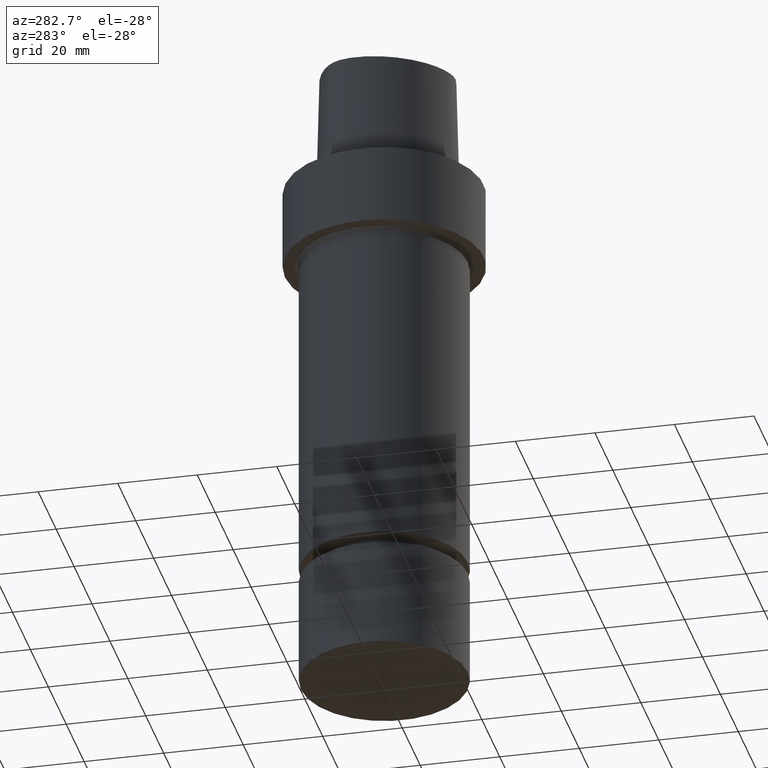
[diagram: clean part render]
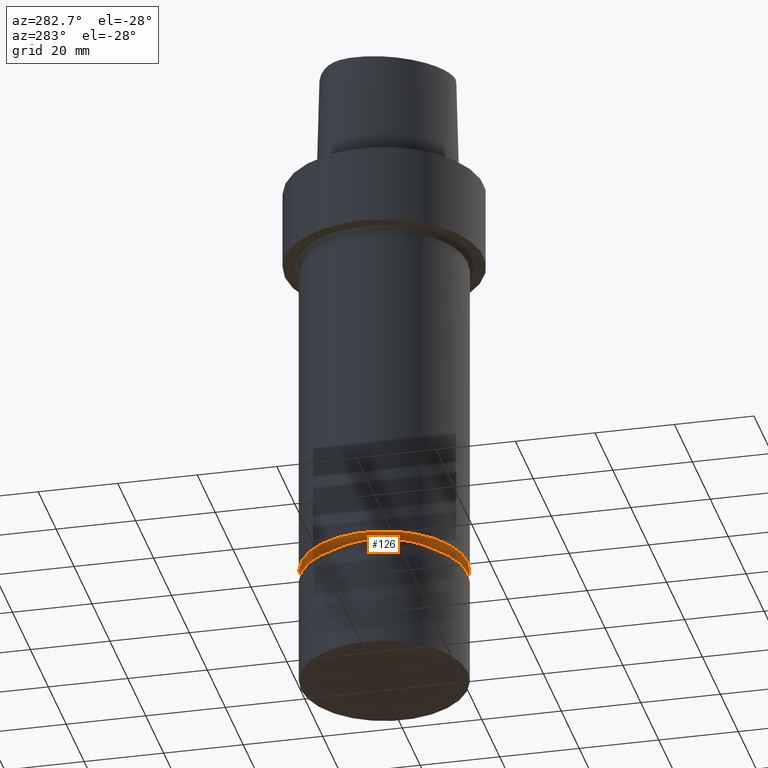
[diagram: same view with one face highlighted and labeled with its STEP entity id]
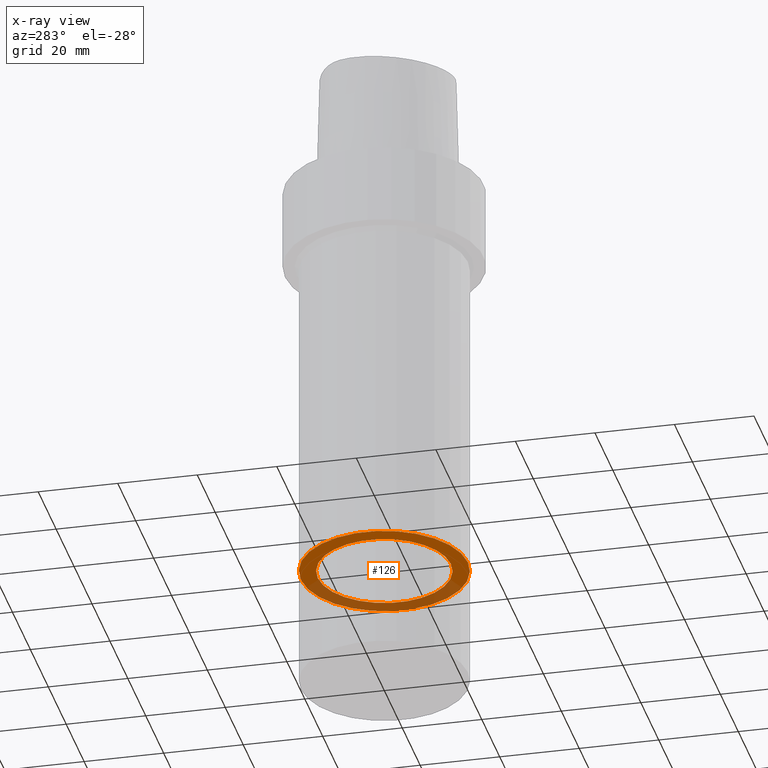
[diagram: x-ray of the same camera — body ghosted, the highlighted face saturated]
A machine part, auxiliary view. The second image highlights one B-rep face of the part: STEP entity #126.
The next image is the same camera in x-ray: the body ghosted, the highlighted face saturated — about 39% of this face is hidden behind the body in this view.
In plain terms, the highlighted planar face has unit normal (0, -0, -1).
Its self-contained STEP definition (entity closure, byte-faithful):
#87=EDGE_CURVE('Unnamed[1]',#200,#200,#201,.T.);
#89=EDGE_CURVE('Unnamed[1]',#203,#203,#204,.T.);
#126=ADVANCED_FACE('Unnamed[1]',(#257,#258),#259,.T.);
#200=VERTEX_POINT('',#345);
#201=CIRCLE('',#346,16.7499999999907);
#203=VERTEX_POINT('',#349);
#204=CIRCLE('',#350,21.0000000000003);
#257=FACE_BOUND('',#946,.T.);
#258=FACE_OUTER_BOUND('',#947,.T.);
#259=PLANE('',#948);
#345=CARTESIAN_POINT('',(6.39877952554487E-015,16.7499999999907,-104.499999999999));
#346=AXIS2_PLACEMENT_3D('',#1026,#1027,#1028);
#349=CARTESIAN_POINT('',(6.39877952554491E-015,21.0000000000003,-104.5));
#350=AXIS2_PLACEMENT_3D('',#1029,#1030,#1031);
#946=EDGE_LOOP('',(#1078));
#947=EDGE_LOOP('',(#1079));
#948=AXIS2_PLACEMENT_3D('',#1080,#1081,#1082);
#1026=CARTESIAN_POINT('',(6.39877952554487E-015,1.27975590510897E-014,-104.499999999999));
#1027=DIRECTION('',(6.12323399573677E-017,1.22464679914735E-016,-1.0));
#1028=DIRECTION('',(-1.23259516440783E-032,1.0,1.22464679914735E-016));
#1029=CARTESIAN_POINT('',(6.39877952554491E-015,1.27975590510898E-014,-104.5));
#1030=DIRECTION('',(6.12323399573677E-017,1.22464679914735E-016,-1.0));
#1031=DIRECTION('',(-1.23259516440783E-032,1.0,1.22464679914735E-016));
#1078=ORIENTED_EDGE('',*,*,#87,.F.);
#1079=ORIENTED_EDGE('',*,*,#89,.T.);
#1080=CARTESIAN_POINT('',(6.39877952554489E-015,18.8749999999955,-104.5));
#1081=DIRECTION('',(6.12323399573677E-017,-1.63720330859692E-013,-1.0));
#1082=DIRECTION('',(1.00201518044026E-029,1.0,-1.63720330859692E-013));